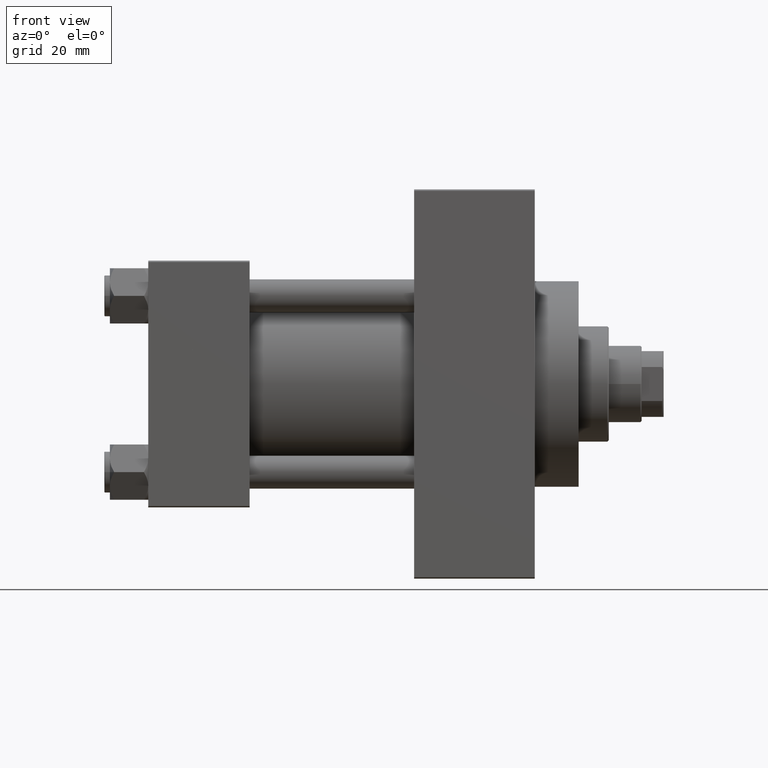
[diagram: clean part render]
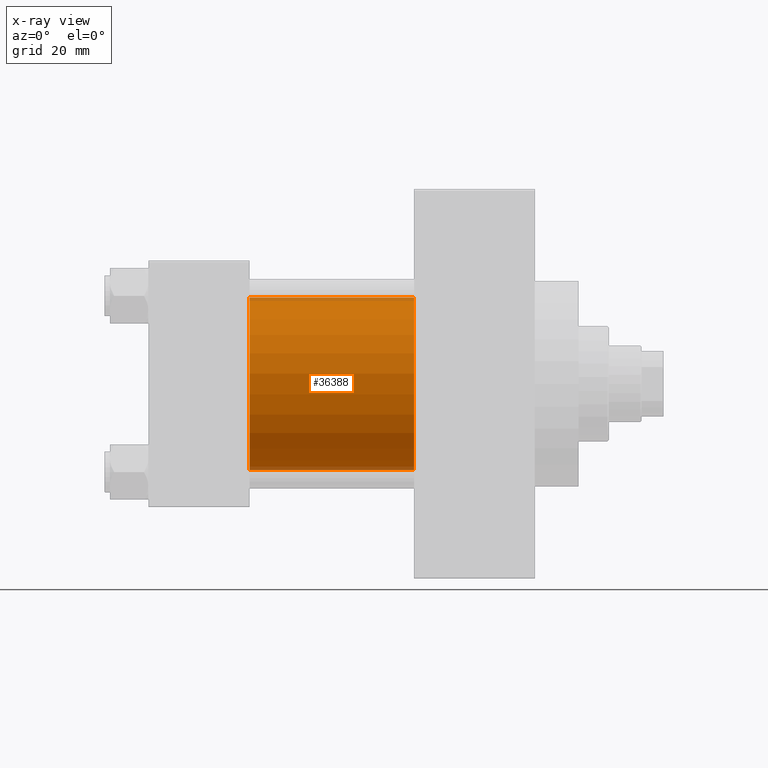
[diagram: x-ray — body ghosted, one internal face saturated and labeled with its STEP entity id]
A machine part, front view, then the same camera in x-ray: the body is ghosted and one INTERNAL B-rep face — a face not visible from any outside direction — is saturated and labeled: STEP entity #36388.
In plain terms, the highlighted cylindrical surface (partial cylindrical patch) has radius 31.5 mm, axis along (-1, -0, -0).
Its self-contained STEP definition (entity closure, byte-faithful):
#160 = AXIS2_PLACEMENT_3D ( 'NONE', #26424, #34146, #7469 ) ;
#1999 = LINE ( 'NONE', #43878, #48989 ) ;
#2616 = CARTESIAN_POINT ( 'NONE',  ( 97.00000000000000000, 1.255552203348951850E-15, -31.50000000000000000 ) ) ;
#2883 = EDGE_CURVE ( 'NONE', #47499, #9235, #48725, .T. ) ;
#3047 = VECTOR ( 'NONE', #17843, 1000.000000000000000 ) ;
#4364 = AXIS2_PLACEMENT_3D ( 'NONE', #20758, #43677, #28960 ) ;
#5871 = CARTESIAN_POINT ( 'NONE',  ( 97.00000000000000000, 1.255552203348951850E-15, -31.50000000000000000 ) ) ;
#6478 = EDGE_CURVE ( 'NONE', #40142, #9995, #46534, .T. ) ;
#7469 = DIRECTION ( 'NONE',  ( 0.000000000000000000, 0.000000000000000000, -1.000000000000000000 ) ) ;
#7772 = EDGE_CURVE ( 'NONE', #47499, #40142, #1999, .T. ) ;
#9235 = VERTEX_POINT ( 'NONE', #5871 ) ;
#9995 = VERTEX_POINT ( 'NONE', #18104 ) ;
#11180 = CYLINDRICAL_SURFACE ( 'NONE', #44943, 31.50000000000000000 ) ;
#14602 = ORIENTED_EDGE ( 'NONE', *, *, #6478, .F. ) ;
#17723 = DIRECTION ( 'NONE',  ( -1.000000000000000000, -0.000000000000000000, -0.000000000000000000 ) ) ;
#17843 = DIRECTION ( 'NONE',  ( -1.000000000000000000, -0.000000000000000000, -0.000000000000000000 ) ) ;
#18104 = CARTESIAN_POINT ( 'NONE',  ( 37.00000000000000000, 1.255552203348951850E-15, -31.50000000000000000 ) ) ;
#18708 = EDGE_CURVE ( 'NONE', #9235, #9995, #36773, .T. ) ;
#20594 = CARTESIAN_POINT ( 'NONE',  ( 97.00000000000000000, -2.602085213965210642E-15, 31.50000000000000000 ) ) ;
#20758 = CARTESIAN_POINT ( 'NONE',  ( 37.00000000000000000, -2.602085213965210642E-15, 0.000000000000000000 ) ) ;
#21692 = EDGE_LOOP ( 'NONE', ( #29929, #34548, #14602, #25788 ) ) ;
#23136 = CARTESIAN_POINT ( 'NONE',  ( 97.00000000000000000, -2.602085213965210642E-15, 0.000000000000000000 ) ) ;
#25788 = ORIENTED_EDGE ( 'NONE', *, *, #7772, .F. ) ;
#26424 = CARTESIAN_POINT ( 'NONE',  ( 97.00000000000000000, -2.602085213965210642E-15, 0.000000000000000000 ) ) ;
#28960 = DIRECTION ( 'NONE',  ( 0.000000000000000000, 0.000000000000000000, -1.000000000000000000 ) ) ;
#29929 = ORIENTED_EDGE ( 'NONE', *, *, #2883, .T. ) ;
#30609 = FACE_OUTER_BOUND ( 'NONE', #21692, .T. ) ;
#34146 = DIRECTION ( 'NONE',  ( 1.000000000000000000, 0.000000000000000000, 0.000000000000000000 ) ) ;
#34548 = ORIENTED_EDGE ( 'NONE', *, *, #18708, .T. ) ;
#36388 = ADVANCED_FACE ( 'NONE', ( #30609 ), #11180, .F. ) ;
#36773 = LINE ( 'NONE', #2616, #3047 ) ;
#40142 = VERTEX_POINT ( 'NONE', #42895 ) ;
#42895 = CARTESIAN_POINT ( 'NONE',  ( 37.00000000000000000, -2.602085213965210642E-15, 31.50000000000000000 ) ) ;
#43677 = DIRECTION ( 'NONE',  ( 1.000000000000000000, 0.000000000000000000, 0.000000000000000000 ) ) ;
#43878 = CARTESIAN_POINT ( 'NONE',  ( 97.00000000000000000, -2.602085213965210642E-15, 31.50000000000000000 ) ) ;
#44943 = AXIS2_PLACEMENT_3D ( 'NONE', #23136, #45807, #46058 ) ;
#45807 = DIRECTION ( 'NONE',  ( -1.000000000000000000, -0.000000000000000000, -0.000000000000000000 ) ) ;
#46058 = DIRECTION ( 'NONE',  ( 0.000000000000000000, 0.000000000000000000, 1.000000000000000000 ) ) ;
#46534 = CIRCLE ( 'NONE', #4364, 31.50000000000000000 ) ;
#47499 = VERTEX_POINT ( 'NONE', #20594 ) ;
#48725 = CIRCLE ( 'NONE', #160, 31.50000000000000000 ) ;
#48989 = VECTOR ( 'NONE', #17723, 1000.000000000000000 ) ;